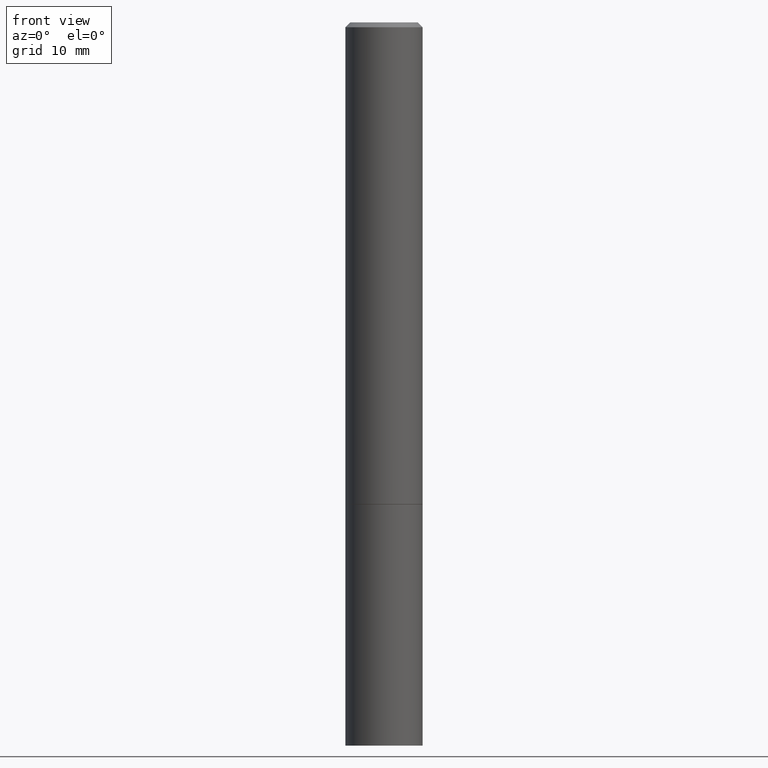
[diagram: clean part render]
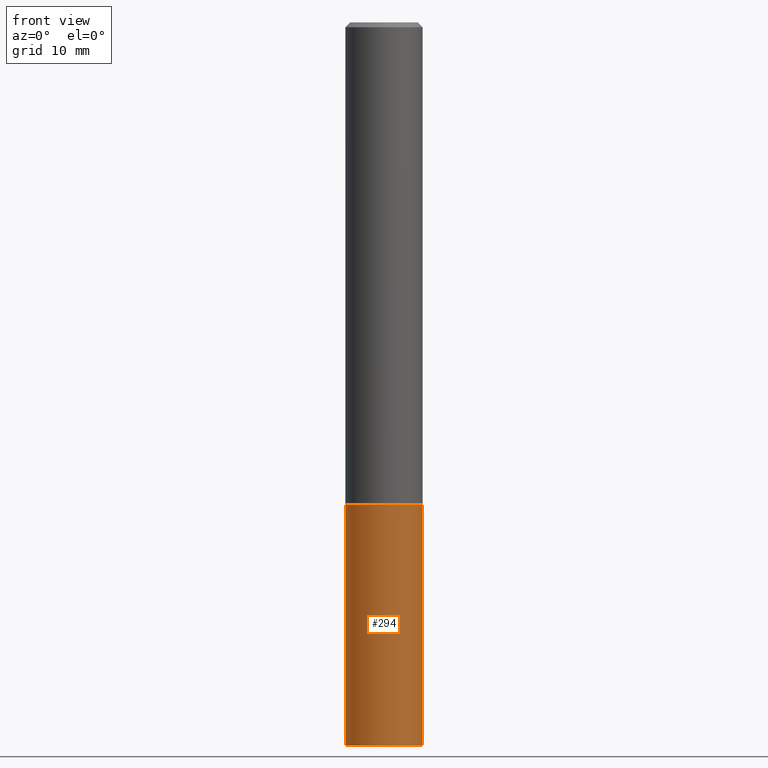
[diagram: same view with one face highlighted and labeled with its STEP entity id]
A machine part, front view. The second image highlights one B-rep face of the part: STEP entity #294.
In plain terms, the highlighted cylindrical surface (partial cylindrical patch) has radius 4.0005 mm, axis along (-0, 0, 1).
Its self-contained STEP definition (entity closure, byte-faithful):
#1 = DIRECTION ( 'NONE',  ( 1.000000000000000000, -6.982962677686261977E-15, 0.000000000000000000 ) ) ;
#5 = AXIS2_PLACEMENT_3D ( 'NONE', #322, #22, #187 ) ;
#18 = EDGE_CURVE ( 'NONE', #97, #140, #229, .T. ) ;
#22 = DIRECTION ( 'NONE',  ( -2.445468806185136597E-29, 3.491481338843145583E-15, 1.000000000000000000 ) ) ;
#38 = EDGE_CURVE ( 'NONE', #97, #159, #75, .T. ) ;
#46 = ORIENTED_EDGE ( 'NONE', *, *, #18, .F. ) ;
#55 = DIRECTION ( 'NONE',  ( -2.445468806185136597E-29, 3.491481338843145583E-15, 1.000000000000000000 ) ) ;
#71 = LINE ( 'NONE', #148, #335 ) ;
#75 = CIRCLE ( 'NONE', #363, 0.1575000000000000011 ) ;
#93 = EDGE_CURVE ( 'NONE', #159, #330, #71, .T. ) ;
#97 = VERTEX_POINT ( 'NONE', #350 ) ;
#131 = CARTESIAN_POINT ( 'NONE',  ( 0.000000000000000000, 0.000000000000000000, 0.000000000000000000 ) ) ;
#134 = FACE_OUTER_BOUND ( 'NONE', #171, .T. ) ;
#140 = VERTEX_POINT ( 'NONE', #300 ) ;
#144 = CARTESIAN_POINT ( 'NONE',  ( 7.220980290903470182E-29, -1.030964609733603853E-14, -2.952799999999999869 ) ) ;
#148 = CARTESIAN_POINT ( 'NONE',  ( 0.1575000000000000011, -1.099816621735586889E-15, 7.679978421878598033E-30 ) ) ;
#159 = VERTEX_POINT ( 'NONE', #303 ) ;
#164 = CIRCLE ( 'NONE', #5, 0.1575000000000000011 ) ;
#171 = EDGE_LOOP ( 'NONE', ( #46, #205, #212, #297 ) ) ;
#187 = DIRECTION ( 'NONE',  ( 1.000000000000000000, -6.982962677686268288E-15, 0.000000000000000000 ) ) ;
#190 = AXIS2_PLACEMENT_3D ( 'NONE', #131, #310, #362 ) ;
#205 = ORIENTED_EDGE ( 'NONE', *, *, #38, .T. ) ;
#212 = ORIENTED_EDGE ( 'NONE', *, *, #93, .T. ) ;
#215 = EDGE_CURVE ( 'NONE', #140, #330, #164, .T. ) ;
#217 = VECTOR ( 'NONE', #254, 39.37007874015748143 ) ;
#229 = LINE ( 'NONE', #318, #217 ) ;
#254 = DIRECTION ( 'NONE',  ( -2.445468806185136877E-29, 3.491481338843145188E-15, 1.000000000000000000 ) ) ;
#294 = ADVANCED_FACE ( 'NONE', ( #134 ), #364, .T. ) ;
#297 = ORIENTED_EDGE ( 'NONE', *, *, #215, .F. ) ;
#300 = CARTESIAN_POINT ( 'NONE',  ( -0.1575000000000000011, -7.472208747602227514E-15, -1.968499999999999694 ) ) ;
#303 = CARTESIAN_POINT ( 'NONE',  ( 0.1575000000000000011, -1.140946271907162522E-14, -2.952799999999999869 ) ) ;
#310 = DIRECTION ( 'NONE',  ( -2.445468806185136597E-29, 3.491481338843145583E-15, 1.000000000000000000 ) ) ;
#318 = CARTESIAN_POINT ( 'NONE',  ( -0.1575000000000000011, 1.119104808822157801E-15, -7.747322767151475583E-30 ) ) ;
#322 = CARTESIAN_POINT ( 'NONE',  ( 4.813905344975440714E-29, -6.872981015512730918E-15, -1.968499999999999694 ) ) ;
#330 = VERTEX_POINT ( 'NONE', #339 ) ;
#335 = VECTOR ( 'NONE', #354, 39.37007874015748143 ) ;
#339 = CARTESIAN_POINT ( 'NONE',  ( 0.1575000000000000011, -7.972797637248318399E-15, -1.968499999999999694 ) ) ;
#350 = CARTESIAN_POINT ( 'NONE',  ( -0.1575000000000000011, -7.472208747602227514E-15, -2.952799999999999869 ) ) ;
#354 = DIRECTION ( 'NONE',  ( -2.445468806185136877E-29, 3.491481338843145188E-15, 1.000000000000000000 ) ) ;
#362 = DIRECTION ( 'NONE',  ( 1.000000000000000000, -6.982962677686265922E-15, 4.876176775795935232E-29 ) ) ;
#363 = AXIS2_PLACEMENT_3D ( 'NONE', #144, #55, #1 ) ;
#364 = CYLINDRICAL_SURFACE ( 'NONE', #190, 0.1575000000000000011 ) ;